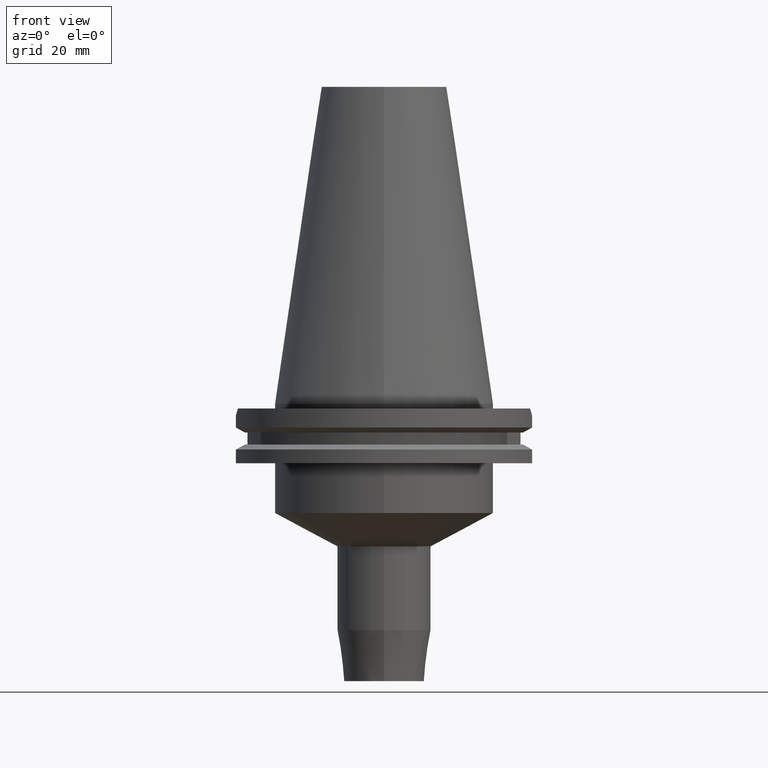
[diagram: clean part render]
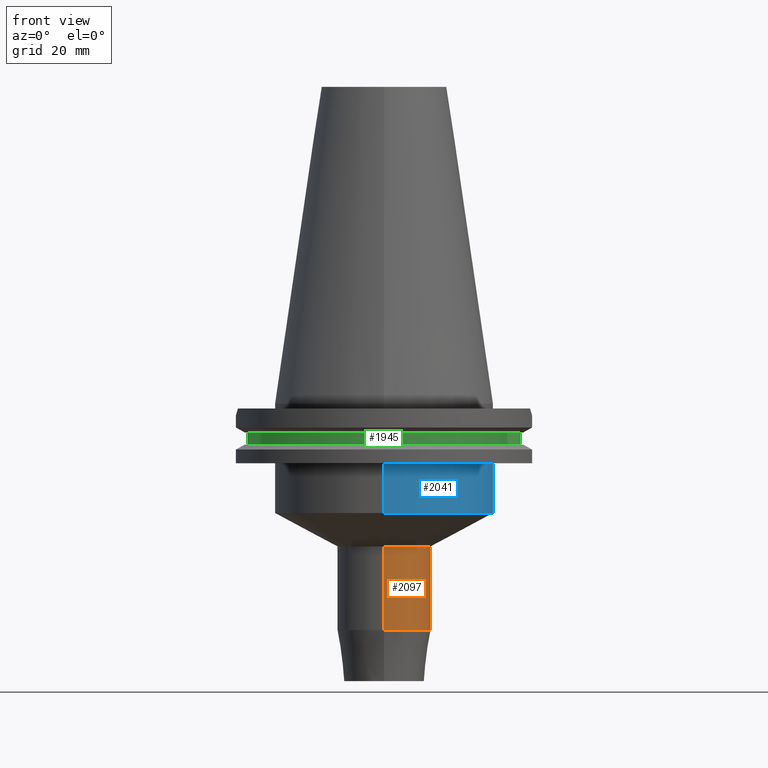
[diagram: same view with three faces highlighted in distinct colors, each labeled with its STEP entity id]
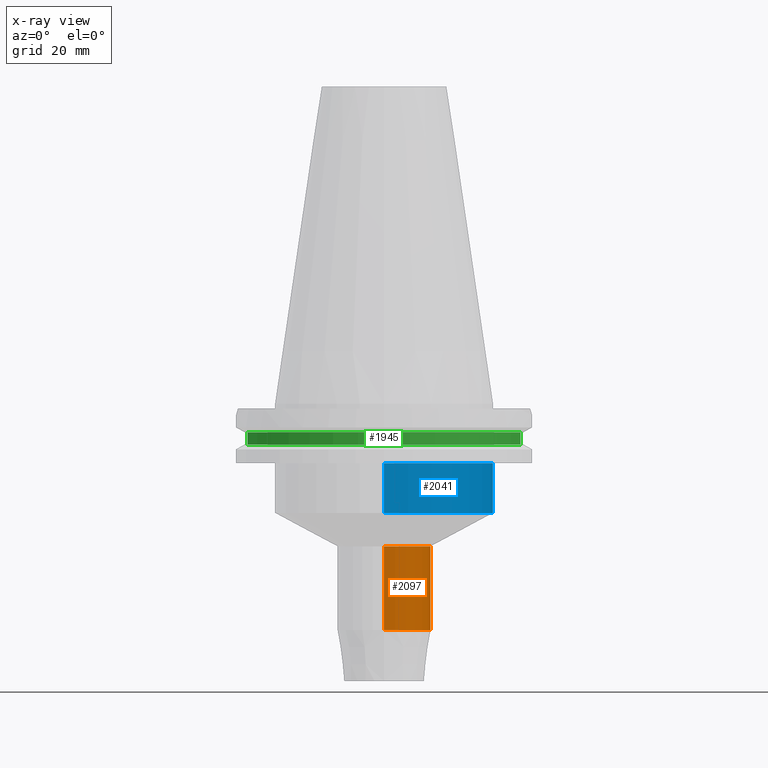
[diagram: x-ray of the same camera — body ghosted, the three highlighted faces saturated]
A machine part, front view with three faces highlighted in distinct colors.
The next image is the same camera in x-ray (body ghosted, the three faces saturated) — at least one of them is partly hidden behind the body in this view.
Their STEP definitions:

[orange] entity #2097 — the highlighted cylindrical surface (partial cylindrical patch) has radius 15 mm, axis along (0, 0, -1).
#869=CARTESIAN_POINT('',(0.E0,0.E0,-4.571505354036E1));
#870=DIRECTION('',(0.E0,0.E0,-1.E0));
#871=DIRECTION('',(0.E0,1.E0,0.E0));
#872=AXIS2_PLACEMENT_3D('',#869,#870,#871);
#908=DIRECTION('',(0.E0,0.E0,-1.E0));
#909=VECTOR('',#908,2.681989422377E1);
#910=CARTESIAN_POINT('',(0.E0,-1.5E1,-4.571505354036E1));
#911=LINE('',#910,#909);
#915=DIRECTION('',(0.E0,0.E0,-1.E0));
#916=VECTOR('',#915,2.681989422377E1);
#917=CARTESIAN_POINT('',(0.E0,1.5E1,-4.571505354036E1));
#918=LINE('',#917,#916);
#929=CARTESIAN_POINT('',(0.E0,0.E0,-7.253494776413E1));
#930=DIRECTION('',(0.E0,0.E0,1.E0));
#931=DIRECTION('',(0.E0,-1.E0,0.E0));
#932=AXIS2_PLACEMENT_3D('',#929,#930,#931);
#1264=CARTESIAN_POINT('',(0.E0,1.5E1,-7.253494776413E1));
#1265=VERTEX_POINT('',#1264);
#1266=CARTESIAN_POINT('',(0.E0,-1.5E1,-7.253494776413E1));
#1267=VERTEX_POINT('',#1266);
#1268=CARTESIAN_POINT('',(0.E0,1.5E1,-4.571505354036E1));
#1269=VERTEX_POINT('',#1268);
#1270=CARTESIAN_POINT('',(0.E0,-1.5E1,-4.571505354036E1));
#1271=VERTEX_POINT('',#1270);
#2085=CARTESIAN_POINT('',(0.E0,2.585535554700E-14,1.11125E2));
#2086=DIRECTION('',(0.E0,0.E0,-1.E0));
#2087=DIRECTION('',(0.E0,-1.E0,0.E0));
#2088=AXIS2_PLACEMENT_3D('',#2085,#2086,#2087);
#2089=CYLINDRICAL_SURFACE('',#2088,1.5E1);
#2090=ORIENTED_EDGE('',*,*,#2075,.T.);
#2092=ORIENTED_EDGE('',*,*,#2091,.F.);
#2093=ORIENTED_EDGE('',*,*,#2078,.F.);
#2094=ORIENTED_EDGE('',*,*,#2049,.F.);
#2095=EDGE_LOOP('',(#2090,#2092,#2093,#2094));
#2096=FACE_OUTER_BOUND('',#2095,.F.);
#873=CIRCLE('',#872,1.5E1);
#933=CIRCLE('',#932,1.5E1);
#2049=EDGE_CURVE('',#1269,#1271,#873,.T.);
#2075=EDGE_CURVE('',#1269,#1265,#918,.T.);
#2078=EDGE_CURVE('',#1271,#1267,#911,.T.);
#2091=EDGE_CURVE('',#1267,#1265,#933,.T.);
#2097=ADVANCED_FACE('',(#2096),#2089,.T.);

[blue] entity #2041 — the highlighted cylindrical surface (partial cylindrical patch) has radius 34.925 mm, axis along (0, 0, -1).
#259=CARTESIAN_POINT('',(0.E0,2.585535554700E-14,-1.905E1));
#260=DIRECTION('',(0.E0,0.E0,-1.E0));
#261=DIRECTION('',(0.E0,1.E0,0.E0));
#262=AXIS2_PLACEMENT_3D('',#259,#260,#261);
#848=DIRECTION('',(0.E0,2.806532435918E-14,-1.E0));
#849=VECTOR('',#848,1.595E1);
#850=CARTESIAN_POINT('',(0.E0,-3.4925E1,-1.905E1));
#851=LINE('',#850,#849);
#855=DIRECTION('',(0.E0,-2.895628703725E-14,-1.E0));
#856=VECTOR('',#855,1.595E1);
#857=CARTESIAN_POINT('',(0.E0,3.4925E1,-1.905E1));
#858=LINE('',#857,#856);
#877=CARTESIAN_POINT('',(0.E0,0.E0,-3.5E1));
#878=DIRECTION('',(0.E0,0.E0,1.E0));
#879=DIRECTION('',(0.E0,-1.E0,0.E0));
#880=AXIS2_PLACEMENT_3D('',#877,#878,#879);
#1272=CARTESIAN_POINT('',(0.E0,3.4925E1,-3.5E1));
#1273=VERTEX_POINT('',#1272);
#1274=CARTESIAN_POINT('',(0.E0,-3.4925E1,-3.5E1));
#1275=VERTEX_POINT('',#1274);
#1276=CARTESIAN_POINT('',(0.E0,3.4925E1,-1.905E1));
#1277=VERTEX_POINT('',#1276);
#1278=CARTESIAN_POINT('',(0.E0,-3.4925E1,-1.905E1));
#1279=VERTEX_POINT('',#1278);
#2029=CARTESIAN_POINT('',(0.E0,2.585535554700E-14,1.11125E2));
#2030=DIRECTION('',(0.E0,0.E0,-1.E0));
#2031=DIRECTION('',(0.E0,-1.E0,0.E0));
#2032=AXIS2_PLACEMENT_3D('',#2029,#2030,#2031);
#2033=CYLINDRICAL_SURFACE('',#2032,3.4925E1);
#2034=ORIENTED_EDGE('',*,*,#2019,.T.);
#2036=ORIENTED_EDGE('',*,*,#2035,.F.);
#2037=ORIENTED_EDGE('',*,*,#2022,.F.);
#2038=ORIENTED_EDGE('',*,*,#1567,.F.);
#2039=EDGE_LOOP('',(#2034,#2036,#2037,#2038));
#2040=FACE_OUTER_BOUND('',#2039,.F.);
#263=CIRCLE('',#262,3.4925E1);
#881=CIRCLE('',#880,3.4925E1);
#1567=EDGE_CURVE('',#1277,#1279,#263,.T.);
#2019=EDGE_CURVE('',#1277,#1273,#858,.T.);
#2022=EDGE_CURVE('',#1279,#1275,#851,.T.);
#2035=EDGE_CURVE('',#1275,#1273,#881,.T.);
#2041=ADVANCED_FACE('',(#2040),#2033,.T.);

[green] entity #1945 — the highlighted cylindrical surface (partial cylindrical patch) has radius 45.645 mm, axis along (0, 0, -1).
#690=CARTESIAN_POINT('',(0.E0,2.585535554700E-14,-9.2075E0));
#691=DIRECTION('',(0.E0,0.E0,-1.E0));
#692=DIRECTION('',(9.588773428655E-1,-2.838207908862E-1,0.E0));
#693=AXIS2_PLACEMENT_3D('',#690,#691,#692);
#698=CARTESIAN_POINT('',(0.E0,2.585535554700E-14,-9.2075E0));
#699=DIRECTION('',(0.E0,0.E0,-1.E0));
#700=DIRECTION('',(0.E0,-1.E0,0.E0));
#701=AXIS2_PLACEMENT_3D('',#698,#699,#700);
#729=DIRECTION('',(0.E0,0.E0,-1.E0));
#730=VECTOR('',#729,3.84E0);
#731=CARTESIAN_POINT('',(4.376795631509E1,-1.2955E1,-9.2075E0));
#732=LINE('',#731,#730);
#736=DIRECTION('',(0.E0,0.E0,1.E0));
#737=VECTOR('',#736,3.84E0);
#738=CARTESIAN_POINT('',(-4.376795631509E1,-1.2955E1,-1.30475E1));
#739=LINE('',#738,#737);
#766=CARTESIAN_POINT('',(0.E0,2.585535554700E-14,-1.30475E1));
#767=DIRECTION('',(0.E0,0.E0,1.E0));
#768=DIRECTION('',(-9.588773428655E-1,-2.838207908862E-1,0.E0));
#769=AXIS2_PLACEMENT_3D('',#766,#767,#768);
#774=CARTESIAN_POINT('',(0.E0,2.585535554700E-14,-1.30475E1));
#775=DIRECTION('',(0.E0,0.E0,1.E0));
#776=DIRECTION('',(0.E0,-1.E0,0.E0));
#777=AXIS2_PLACEMENT_3D('',#774,#775,#776);
#1311=CARTESIAN_POINT('',(4.376795631509E1,-1.2955E1,-1.30475E1));
#1312=VERTEX_POINT('',#1311);
#1313=CARTESIAN_POINT('',(4.376795631509E1,-1.2955E1,-9.2075E0));
#1314=VERTEX_POINT('',#1313);
#1337=CARTESIAN_POINT('',(-4.376795631509E1,-1.2955E1,-9.2075E0));
#1338=VERTEX_POINT('',#1337);
#1339=CARTESIAN_POINT('',(-4.376795631509E1,-1.2955E1,-1.30475E1));
#1340=VERTEX_POINT('',#1339);
#1368=CARTESIAN_POINT('',(-3.016347127729E-14,-4.5645E1,-1.30475E1));
#1369=VERTEX_POINT('',#1368);
#1374=CARTESIAN_POINT('',(3.016347127729E-14,-4.5645E1,-9.2075E0));
#1375=VERTEX_POINT('',#1374);
#1930=CARTESIAN_POINT('',(0.E0,2.585535554700E-14,1.11125E2));
#1931=DIRECTION('',(0.E0,0.E0,-1.E0));
#1932=DIRECTION('',(0.E0,-1.E0,0.E0));
#1933=AXIS2_PLACEMENT_3D('',#1930,#1931,#1932);
#1934=CYLINDRICAL_SURFACE('',#1933,4.5645E1);
#1935=ORIENTED_EDGE('',*,*,#1846,.T.);
#1937=ORIENTED_EDGE('',*,*,#1936,.F.);
#1939=ORIENTED_EDGE('',*,*,#1938,.F.);
#1940=ORIENTED_EDGE('',*,*,#1888,.T.);
#1941=ORIENTED_EDGE('',*,*,#1922,.F.);
#1942=ORIENTED_EDGE('',*,*,#1920,.F.);
#1943=EDGE_LOOP('',(#1935,#1937,#1939,#1940,#1941,#1942));
#1944=FACE_OUTER_BOUND('',#1943,.F.);
#694=CIRCLE('',#693,4.5645E1);
#702=CIRCLE('',#701,4.5645E1);
#770=CIRCLE('',#769,4.5645E1);
#778=CIRCLE('',#777,4.5645E1);
#1846=EDGE_CURVE('',#1314,#1312,#732,.T.);
#1888=EDGE_CURVE('',#1340,#1338,#739,.T.);
#1920=EDGE_CURVE('',#1314,#1375,#694,.T.);
#1922=EDGE_CURVE('',#1375,#1338,#702,.T.);
#1936=EDGE_CURVE('',#1369,#1312,#778,.T.);
#1938=EDGE_CURVE('',#1340,#1369,#770,.T.);
#1945=ADVANCED_FACE('',(#1944),#1934,.T.);